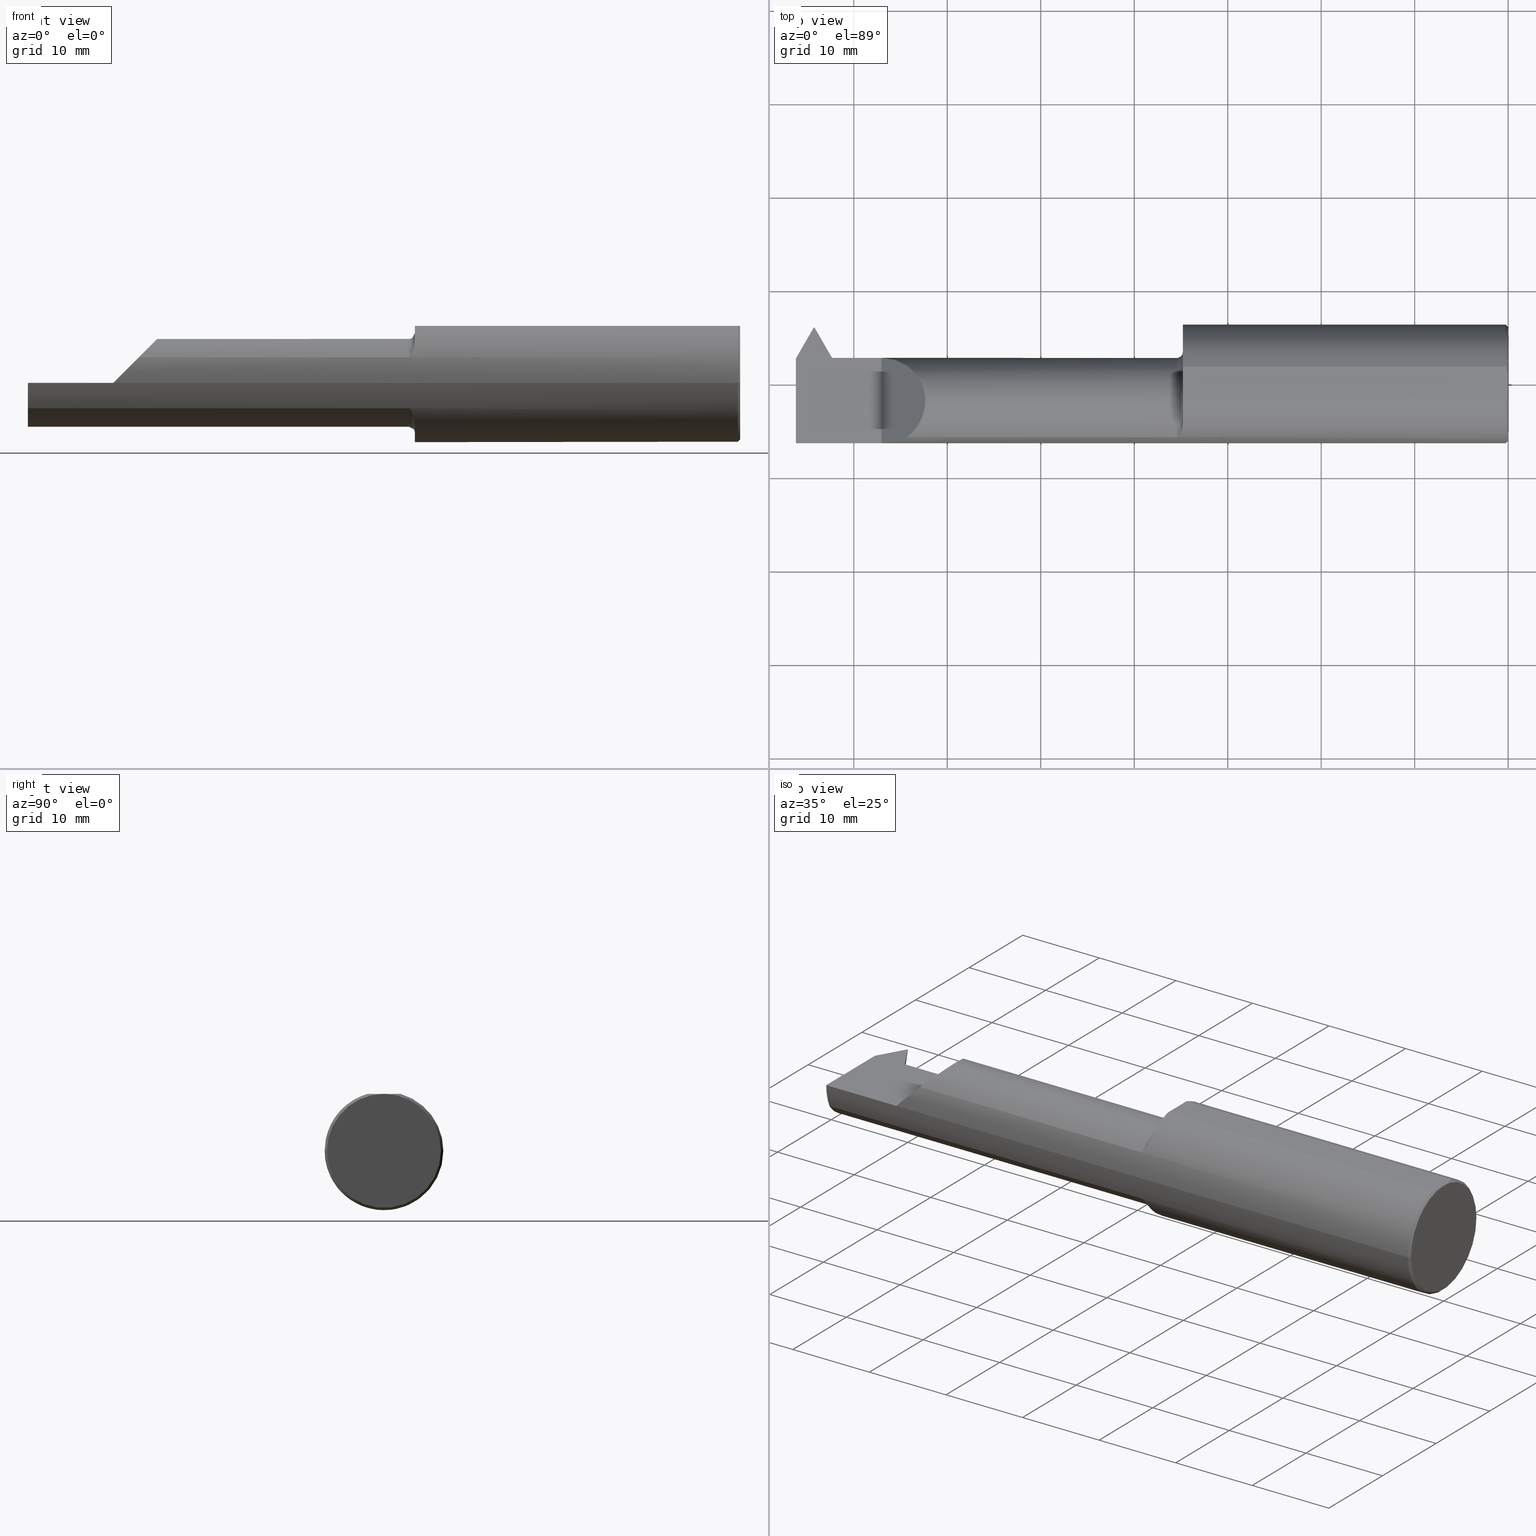
[diagram: canonical four-view strip — front | top / right | iso, engineering-drawing reading convention]
A machine part, canonical four-view strip (front | top / right | iso — engineering-drawing reading convention). The complete STEP part file that produces these views, byte-faithful:
ISO-10303-21;
HEADER;
FILE_DESCRIPTION (( 'STEP AP203' ),
    '1' );
FILE_NAME ('231969-LHTT4901500.STEP',
    '2025-01-28T21:48:16',
    ( '' ),
    ( '' ),
    'SwSTEP 2.0',
    'SolidWorks 2024',
    '' );
FILE_SCHEMA (( 'CONFIG_CONTROL_DESIGN' ));
ENDSEC;

DATA;
#1 = MECHANICAL_CONTEXT ( 'NONE', #387, 'mechanical' ) ;
#2 = CIRCLE ( 'NONE', #408, 0.2498500000000000443 ) ;
#3 = CIRCLE ( 'NONE', #499, 0.2498499999999999888 ) ;
#4 = LINE ( 'NONE', #75, #157 ) ;
#5 = CARTESIAN_POINT ( 'NONE',  ( 0.000000000000000000, 4.286263797015730678E-16, 0.000000000000000000 ) ) ;
#6 = EDGE_CURVE ( 'NONE', #542, #715, #551, .T. ) ;
#7 = ORIENTED_EDGE ( 'NONE', *, *, #148, .T. ) ;
#8 = APPROVAL_DATE_TIME ( #547, #130 ) ;
#9 = DIRECTION ( 'NONE',  ( -0.000000000000000000, 1.000000000000000000, -0.000000000000000000 ) ) ;
#10 = FACE_OUTER_BOUND ( 'NONE', #766, .T. ) ;
#11 = EDGE_CURVE ( 'NONE', #273, #633, #170, .T. ) ;
#12 = VERTEX_POINT ( 'NONE', #44 ) ;
#13 = AXIS2_PLACEMENT_3D ( 'NONE', #346, #571, #582 ) ;
#14 = DIRECTION ( 'NONE',  ( 0.000000000000000000, 1.000000000000000000, 0.000000000000000000 ) ) ;
#15 = FACE_OUTER_BOUND ( 'NONE', #64, .T. ) ;
#16 = VERTEX_POINT ( 'NONE', #410 ) ;
#17 = VECTOR ( 'NONE', #572, 39.37007874015748143 ) ;
#18 = DIRECTION ( 'NONE',  ( 0.000000000000000000, -0.3090169943749416781, -0.9510565162951555296 ) ) ;
#19 = VECTOR ( 'NONE', #492, 39.37007874015748143 ) ;
#20 = CARTESIAN_POINT ( 'NONE',  ( -0.009999999999999620304, 0.06997856814768398104, 0.2398500000000000076 ) ) ;
#21 = VERTEX_POINT ( 'NONE', #646 ) ;
#22 = CARTESIAN_POINT ( 'NONE',  ( -2.840467636289440545, 0.1101500000000000812, -0.01619057209964420985 ) ) ;
#23 = VERTEX_POINT ( 'NONE', #108 ) ;
#24 = CC_DESIGN_APPROVAL ( #617, ( #68 ) ) ;
#25 = DIRECTION ( 'NONE',  ( 0.4999999999999886202, 0.8660254037844451469, 1.197357567446783285E-16 ) ) ;
#26 = EDGE_LOOP ( 'NONE', ( #437, #624, #362 ) ) ;
#27 = CARTESIAN_POINT ( 'NONE',  ( -2.847599165543727828, 0.1101499999999999146, 0.000000000000000000 ) ) ;
#28 = EDGE_CURVE ( 'NONE', #226, #21, #290, .T. ) ;
#29 = EDGE_LOOP ( 'NONE', ( #242, #223, #510, #698 ) ) ;
#30 = ADVANCED_FACE ( 'NONE', ( #532 ), #710, .F. ) ;
#31 = CARTESIAN_POINT ( 'NONE',  ( -2.842599165543727935, 0.1101499999999998591, 0.000000000000000000 ) ) ;
#32 = LINE ( 'NONE', #156, #371 ) ;
#33 = EDGE_LOOP ( 'NONE', ( #158, #389, #599, #555, #448 ) ) ;
#34 = DIRECTION ( 'NONE',  ( 0.000000000000000000, -1.000000000000000000, 0.000000000000000000 ) ) ;
#35 = AXIS2_PLACEMENT_3D ( 'NONE', #284, #527, #757 ) ;
#36 = CARTESIAN_POINT ( 'NONE',  ( -1.387753075814180059, -0.2232556704115741253, 0.1121857874001151445 ) ) ;
#37 = ORIENTED_EDGE ( 'NONE', *, *, #563, .T. ) ;
#38 = DIRECTION ( 'NONE',  ( 0.2467836442342498937, 0.6229065763008626577, 0.7423511501571210536 ) ) ;
#39 = CARTESIAN_POINT ( 'NONE',  ( -1.392642439405626709, -0.2255733860777257294, 0.1074346955532789610 ) ) ;
#40 = ORIENTED_EDGE ( 'NONE', *, *, #231, .T. ) ;
#41 = AXIS2_PLACEMENT_3D ( 'NONE', #236, #412, #711 ) ;
#42 = LINE ( 'NONE', #224, #239 ) ;
#43 = FACE_OUTER_BOUND ( 'NONE', #58, .T. ) ;
#44 = CARTESIAN_POINT ( 'NONE',  ( -1.395000000000000240, -0.2258019038076137797, -0.1069510296203694671 ) ) ;
#45 = CARTESIAN_POINT ( 'NONE',  ( -2.842599165543727935, 0.1038462778634775124, -0.04788152334396636456 ) ) ;
#46 = DIRECTION ( 'NONE',  ( 1.000000000000000000, 1.224646799147351482E-16, -0.000000000000000000 ) ) ;
#47 = CARTESIAN_POINT ( 'NONE',  ( -2.912095980180414490, 0.2003055609682066474, -0.08186779325844162347 ) ) ;
#48 = ORIENTED_EDGE ( 'NONE', *, *, #111, .F. ) ;
#49 = EDGE_CURVE ( 'NONE', #640, #16, #673, .T. ) ;
#50 = ADVANCED_FACE ( 'NONE', ( #127 ), #429, .F. ) ;
#51 = PERSON_AND_ORGANIZATION ( #758, #676 ) ;
#52 = VECTOR ( 'NONE', #609, 39.37007874015748143 ) ;
#53 = CARTESIAN_POINT ( 'NONE',  ( -1.378062043806189907, -0.2099213682548084214, -0.1358028076871573564 ) ) ;
#54 = ORIENTED_EDGE ( 'NONE', *, *, #367, .F. ) ;
#55 = COORDINATED_UNIVERSAL_TIME_OFFSET ( 8, 0, .BEHIND. ) ;
#56 = APPLICATION_CONTEXT ( 'configuration controlled 3d designs of mechanical parts and assemblies' ) ;
#57 = CARTESIAN_POINT ( 'NONE',  ( -1.370000000000000329, 2.608497682183858774E-16, 0.000000000000000000 ) ) ;
#58 = EDGE_LOOP ( 'NONE', ( #212, #720, #479, #546, #372, #654, #537, #613 ) ) ;
#59 = LOCAL_TIME ( 13, 48, 16.00000000000000000, #55 ) ;
#60 = FACE_OUTER_BOUND ( 'NONE', #77, .T. ) ;
#61 = ADVANCED_FACE ( 'NONE', ( #488 ), #171, .T. ) ;
#62 = CARTESIAN_POINT ( 'NONE',  ( -2.842599165543729267, 0.08579428794633160715, -0.1849999999999999978 ) ) ;
#63 = CARTESIAN_POINT ( 'NONE',  ( -2.118799582771864198, -0.2258019038076136131, 0.1069510296203693839 ) ) ;
#64 = EDGE_LOOP ( 'NONE', ( #539, #381, #323, #278, #104, #70, #298, #283, #550, #685 ) ) ;
#65 = LENGTH_MEASURE_WITH_UNIT ( LENGTH_MEASURE( 0.02539999999999999897 ), #480 );
#66 = CIRCLE ( 'NONE', #210, 0.2398500000000004240 ) ;
#67 = PLANE ( 'NONE',  #524 ) ;
#68 = PRODUCT_DEFINITION ( 'UNKNOWN', '', #465, #357 ) ;
#69 = DIRECTION ( 'NONE',  ( 1.000000000000000000, -9.422009876951564852E-18, 0.000000000000000000 ) ) ;
#70 = ORIENTED_EDGE ( 'NONE', *, *, #634, .F. ) ;
#71 = PLANE ( 'NONE',  #396 ) ;
#72 = LINE ( 'NONE', #611, #92 ) ;
#73 = ORIENTED_EDGE ( 'NONE', *, *, #449, .F. ) ;
#74 = CC_DESIGN_SECURITY_CLASSIFICATION ( #337, ( #465 ) ) ;
#75 = CARTESIAN_POINT ( 'NONE',  ( -2.800000000000000266, 0.2186548182260258100, -0.05999999999999999778 ) ) ;
#76 = CARTESIAN_POINT ( 'NONE',  ( -3.000000000000000444, 0.1101500000000000812, 0.000000000000000000 ) ) ;
#77 = EDGE_LOOP ( 'NONE', ( #133, #671, #399, #504, #262, #270, #678 ) ) ;
#78 = DATE_TIME_ROLE ( 'classification_date' ) ;
#79 = VECTOR ( 'NONE', #69, 39.37007874015748143 ) ;
#80 = AXIS2_PLACEMENT_3D ( 'NONE', #277, #520, #324 ) ;
#81 = DIRECTION ( 'NONE',  ( 1.224646799147374161E-16, -1.000000000000000000, 0.000000000000000000 ) ) ;
#82 = ORIENTED_EDGE ( 'NONE', *, *, #162, .T. ) ;
#83 = CARTESIAN_POINT ( 'NONE',  ( 4.467205361589754149E-17, -0.2398499999999999799, 0.000000000000000000 ) ) ;
#84 = ORIENTED_EDGE ( 'NONE', *, *, #427, .T. ) ;
#85 = SHAPE_DEFINITION_REPRESENTATION ( #432, #596 ) ;
#86 = EDGE_CURVE ( 'NONE', #16, #150, #72, .T. ) ;
#87 = EDGE_CURVE ( 'NONE', #215, #477, #661, .T. ) ;
#88 = CARTESIAN_POINT ( 'NONE',  ( -1.370000000000000329, 0.2498500000000004329, 0.000000000000000000 ) ) ;
#89 = EDGE_LOOP ( 'NONE', ( #457, #562, #115, #658, #752 ) ) ;
#90 = DIRECTION ( 'NONE',  ( 1.000000000000000000, -9.422009876951564852E-18, 0.000000000000000000 ) ) ;
#91 = CARTESIAN_POINT ( 'NONE',  ( -1.390717781145548226, -0.2249352693140825865, 0.1087643826525832302 ) ) ;
#92 = VECTOR ( 'NONE', #620, 39.37007874015748143 ) ;
#93 = ORIENTED_EDGE ( 'NONE', *, *, #147, .F. ) ;
#94 = FACE_OUTER_BOUND ( 'NONE', #768, .T. ) ;
#95 = LINE ( 'NONE', #445, #17 ) ;
#96 = ORIENTED_EDGE ( 'NONE', *, *, #612, .F. ) ;
#97 = PLANE ( 'NONE',  #217 ) ;
#98 = CIRCLE ( 'NONE', #404, 0.1850000000000004141 ) ;
#99 = CARTESIAN_POINT ( 'NONE',  ( -1.371956565677432849, -0.1873305359565244632, 0.1655982590109640606 ) ) ;
#100 = VERTEX_POINT ( 'NONE', #20 ) ;
#101 = DIRECTION ( 'NONE',  ( -0.7071067811865514585, 0.000000000000000000, -0.7071067811865435759 ) ) ;
#102 = ADVANCED_FACE ( 'NONE', ( #553 ), #280, .T. ) ;
#103 = CARTESIAN_POINT ( 'NONE',  ( -1.373067695838076308, -0.1933460832554975972, -0.1585269497938200933 ) ) ;
#104 = ORIENTED_EDGE ( 'NONE', *, *, #743, .T. ) ;
#105 = CONICAL_SURFACE ( 'NONE', #342, 0.2398500000000004240, 0.7853981633974466137 ) ;
#106 = PLANE ( 'NONE',  #13 ) ;
#107 = CARTESIAN_POINT ( 'NONE',  ( -2.088003025044360861, -1.205509108578122657, 0.000000000000000000 ) ) ;
#108 = CARTESIAN_POINT ( 'NONE',  ( -3.000000000000000444, -0.07485000000000015252, -0.1850000000000000810 ) ) ;
#109 = DIRECTION ( 'NONE',  ( 0.000000000000000000, -1.000000000000000000, -1.406552993276529236E-16 ) ) ;
#110 =( BOUNDED_CURVE ( )  B_SPLINE_CURVE ( 3, ( #318, #22, #365, #191 ),
 .UNSPECIFIED., .F., .T. ) 
 B_SPLINE_CURVE_WITH_KNOTS ( ( 4, 4 ),
 ( 1.570796326794896780, 1.832595714594120739 ),
 .UNSPECIFIED. ) 
 CURVE ( )  GEOMETRIC_REPRESENTATION_ITEM ( )  RATIONAL_B_SPLINE_CURVE ( ( 1.000000000000000000, 0.9942965742492037018, 0.9942965742492037018, 1.000000000000000000 ) ) 
 REPRESENTATION_ITEM ( '' )  );
#111 = EDGE_CURVE ( 'NONE', #694, #514, #719, .T. ) ;
#112 = CARTESIAN_POINT ( 'NONE',  ( -0.009999999999999620304, 4.274017329024257420E-16, 0.000000000000000000 ) ) ;
#113 = EDGE_CURVE ( 'NONE', #215, #237, #110, .T. ) ;
#114 = APPROVAL_PERSON_ORGANIZATION ( #51, #130, #420 ) ;
#115 = ORIENTED_EDGE ( 'NONE', *, *, #482, .F. ) ;
#116 = PERSON_AND_ORGANIZATION_ROLE ( 'creator' ) ;
#117 = DIRECTION ( 'NONE',  ( 0.5000000000000024425, -0.8660254037844371533, 0.000000000000000000 ) ) ;
#118 = ORIENTED_EDGE ( 'NONE', *, *, #341, .T. ) ;
#119 = CC_DESIGN_PERSON_AND_ORGANIZATION_ASSIGNMENT ( #366, #116, ( #68 ) ) ;
#120 = AXIS2_PLACEMENT_3D ( 'NONE', #214, #508, #397 ) ;
#121 = AXIS2_PLACEMENT_3D ( 'NONE', #723, #548, #14 ) ;
#122 = CARTESIAN_POINT ( 'NONE',  ( -3.000000000000000444, 0.2498500000000000720, 0.000000000000000000 ) ) ;
#123 = ORIENTED_EDGE ( 'NONE', *, *, #714, .F. ) ;
#124 =( BOUNDED_CURVE ( )  B_SPLINE_CURVE ( 3, ( #470, #475, #528, #289 ),
 .UNSPECIFIED., .F., .F. ) 
 B_SPLINE_CURVE_WITH_KNOTS ( ( 4, 4 ),
 ( 4.712388980384689674, 5.154735109466821896 ),
 .UNSPECIFIED. ) 
 CURVE ( )  GEOMETRIC_REPRESENTATION_ITEM ( )  RATIONAL_B_SPLINE_CURVE ( ( 1.000000000000000000, 0.9837605203333756876, 0.9837605203333756876, 1.000000000000000000 ) ) 
 REPRESENTATION_ITEM ( '' )  );
#125 = DATE_TIME_ROLE ( 'creation_date' ) ;
#126 = LINE ( 'NONE', #62, #184 ) ;
#127 = FACE_OUTER_BOUND ( 'NONE', #495, .T. ) ;
#128 = CC_DESIGN_APPROVAL ( #130, ( #465 ) ) ;
#129 = APPLICATION_PROTOCOL_DEFINITION ( 'international standard', 'config_control_design', 1994, #56 ) ;
#130 = APPROVAL ( #307, 'UNSPECIFIED' ) ;
#131 = CARTESIAN_POINT ( 'NONE',  ( -2.856177983137416998, 0.09529105205886381769, -0.1128649149346503816 ) ) ;
#132 = CARTESIAN_POINT ( 'NONE',  ( -2.921500000000000874, 0.2381500000000000283, 0.000000000000000000 ) ) ;
#133 = ORIENTED_EDGE ( 'NONE', *, *, #702, .T. ) ;
#134 = LINE ( 'NONE', #201, #52 ) ;
#135 = DIRECTION ( 'NONE',  ( -1.000000000000000000, -1.224646799147374408E-16, 0.000000000000000000 ) ) ;
#136 = ORIENTED_EDGE ( 'NONE', *, *, #450, .T. ) ;
#137 = FACE_OUTER_BOUND ( 'NONE', #319, .T. ) ;
#138 = CARTESIAN_POINT ( 'NONE',  ( -1.128423961883223559E-15, 0.1101500000000290302, 0.000000000000000000 ) ) ;
#139 = ORIENTED_EDGE ( 'NONE', *, *, #727, .F. ) ;
#140 = APPROVAL_ROLE ( '' ) ;
#141 =( GEOMETRIC_REPRESENTATION_CONTEXT ( 3 ) GLOBAL_UNCERTAINTY_ASSIGNED_CONTEXT ( ( #476 ) ) GLOBAL_UNIT_ASSIGNED_CONTEXT ( ( #292, #235, #535 ) ) REPRESENTATION_CONTEXT ( 'NONE', 'WORKASPACE' ) );
#142 = CARTESIAN_POINT ( 'NONE',  ( 0.000000000000000000, 4.286263797015730678E-16, 0.000000000000000000 ) ) ;
#143 = EDGE_LOOP ( 'NONE', ( #756, #146, #626, #139 ) ) ;
#144 = AXIS2_PLACEMENT_3D ( 'NONE', #390, #557, #18 ) ;
#145 = CARTESIAN_POINT ( 'NONE',  ( -1.386631274780704359, -0.2222865629965309620, 0.1140986214717608638 ) ) ;
#146 = ORIENTED_EDGE ( 'NONE', *, *, #330, .F. ) ;
#147 = EDGE_CURVE ( 'NONE', #514, #21, #578, .T. ) ;
#148 = EDGE_CURVE ( 'NONE', #694, #715, #66, .T. ) ;
#149 = CARTESIAN_POINT ( 'NONE',  ( -1.383611583263218536, -0.2192375443050077477, 0.1199127921006386821 ) ) ;
#150 = VERTEX_POINT ( 'NONE', #132 ) ;
#151 = CARTESIAN_POINT ( 'NONE',  ( -2.924357658144500771, 0.2394501245018068880, 0.004001371775490055079 ) ) ;
#152 = CARTESIAN_POINT ( 'NONE',  ( -1.395000000000000240, -0.2258019038076137797, 0.1069510296203694810 ) ) ;
#153 = ORIENTED_EDGE ( 'NONE', *, *, #642, .F. ) ;
#154 = CARTESIAN_POINT ( 'NONE',  ( -2.640000000000000124, -0.2500000000000000000, 0.000000000000000000 ) ) ;
#155 = AXIS2_PLACEMENT_3D ( 'NONE', #195, #246, #378 ) ;
#156 = CARTESIAN_POINT ( 'NONE',  ( -2.842599165543727935, -0.07485000000000022191, -0.1850000000000000533 ) ) ;
#157 = VECTOR ( 'NONE', #438, 39.37007874015748143 ) ;
#158 = ORIENTED_EDGE ( 'NONE', *, *, #368, .F. ) ;
#159 = DIRECTION ( 'NONE',  ( 0.000000000000000000, -1.000000000000000000, 0.000000000000000000 ) ) ;
#160 = LINE ( 'NONE', #447, #356 ) ;
#161 = EDGE_LOOP ( 'NONE', ( #176, #637, #379, #608 ) ) ;
#162 = EDGE_CURVE ( 'NONE', #266, #215, #426, .T. ) ;
#163 = PLANE ( 'NONE',  #734 ) ;
#164 = AXIS2_PLACEMENT_3D ( 'NONE', #543, #604, #491 ) ;
#165 = CARTESIAN_POINT ( 'NONE',  ( 5.733229207650684486E-16, 0.01185524990370578555, 0.2398500000000000631 ) ) ;
#166 = VERTEX_POINT ( 'NONE', #603 ) ;
#167 = B_SPLINE_CURVE_WITH_KNOTS ( 'NONE', 3,
 ( #517, #269, #575, #99, #456, #632, #401, #628, #149, #145, #36, #738, #91, #39, #452, #393 ),
 .UNSPECIFIED., .F., .F.,
 ( 4, 2, 2, 2, 2, 2, 2, 4 ),
 ( 0.0007713084167964284884, 0.001497239385829862452, 0.002223170354863296307, 0.002949101323896731464, 0.003312066808413445789, 0.003493549550671799266, 0.003584290921800975787, 0.003675032292930152308 ),
 .UNSPECIFIED. ) ;
#168 = CARTESIAN_POINT ( 'NONE',  ( -6.745148754278355005E-33, 3.731796911060679279E-16, 0.2398500000000000631 ) ) ;
#169 = CARTESIAN_POINT ( 'NONE',  ( -0.004312611582161834413, 0.04712320684214399424, 0.2398500000000000631 ) ) ;
#170 = LINE ( 'NONE', #345, #592 ) ;
#171 = CONICAL_SURFACE ( 'NONE', #257, 0.2398500000000004240, 0.7853981633974466137 ) ;
#172 = CARTESIAN_POINT ( 'NONE',  ( -1.370000000000000329, 0.2498500000000002663, 0.000000000000000000 ) ) ;
#173 = EDGE_CURVE ( 'NONE', #302, #240, #260, .T. ) ;
#174 = ADVANCED_FACE ( 'NONE', ( #498 ), #105, .T. ) ;
#175 = LINE ( 'NONE', #47, #621 ) ;
#176 = ORIENTED_EDGE ( 'NONE', *, *, #11, .F. ) ;
#177 = CARTESIAN_POINT ( 'NONE',  ( -2.842599165543727935, -0.07485000000000022191, -0.1850000000000000533 ) ) ;
#178 = DIRECTION ( 'NONE',  ( 1.224646799147351482E-16, -1.000000000000000000, 0.000000000000000000 ) ) ;
#179 = ORIENTED_EDGE ( 'NONE', *, *, #265, .F. ) ;
#180 = PERSON_AND_ORGANIZATION ( #758, #676 ) ;
#181 = CARTESIAN_POINT ( 'NONE',  ( -1.393766764954792015, -0.2258019038076130580, -0.1069510296203704525 ) ) ;
#182 = EDGE_LOOP ( 'NONE', ( #73, #674, #179, #136 ) ) ;
#183 = APPLICATION_PROTOCOL_DEFINITION ( 'international standard', 'config_control_design', 1994, #387 ) ;
#184 = VECTOR ( 'NONE', #303, 39.37007874015748143 ) ;
#185 = FACE_OUTER_BOUND ( 'NONE', #89, .T. ) ;
#186 = CYLINDRICAL_SURFACE ( 'NONE', #268, 0.1850000000000002753 ) ;
#187 = CC_DESIGN_PERSON_AND_ORGANIZATION_ASSIGNMENT ( #763, #243, ( #496 ) ) ;
#188 = APPROVAL_ROLE ( '' ) ;
#189 = MANIFOLD_SOLID_BREP ( 'Angles', #680 ) ;
#190 = CARTESIAN_POINT ( 'NONE',  ( -1.370000000000000329, -0.1598366399459756337, 0.1920345568659278801 ) ) ;
#191 = CARTESIAN_POINT ( 'NONE',  ( -2.836295443407202743, 0.1038462778634750006, -0.04788152334397974969 ) ) ;
#192 = ORIENTED_EDGE ( 'NONE', *, *, #251, .F. ) ;
#193 = PERSON_AND_ORGANIZATION ( #758, #676 ) ;
#194 = DIRECTION ( 'NONE',  ( 0.03381283892699543658, 0.3088402930417901704, 0.9505126855111183382 ) ) ;
#195 = CARTESIAN_POINT ( 'NONE',  ( -0.009999999999999620304, 4.274017329024257420E-16, 0.000000000000000000 ) ) ;
#196 = ORIENTED_EDGE ( 'NONE', *, *, #162, .F. ) ;
#197 = AXIS2_PLACEMENT_3D ( 'NONE', #566, #264, #747 ) ;
#198 = ADVANCED_FACE ( 'NONE', ( #15 ), #186, .T. ) ;
#199 = VECTOR ( 'NONE', #377, 39.37007874015748143 ) ;
#200 = ADVANCED_FACE ( 'NONE', ( #10 ), #250, .T. ) ;
#201 = CARTESIAN_POINT ( 'NONE',  ( 2.937315347754982348E-17, -0.2398499999999999799, 0.000000000000000000 ) ) ;
#202 = CARTESIAN_POINT ( 'NONE',  ( -2.842599165543727935, 2.678299741396727995E-17, 0.000000000000000000 ) ) ;
#203 =( BOUNDED_CURVE ( )  B_SPLINE_CURVE ( 3, ( #760, #704, #395, #340 ),
 .UNSPECIFIED., .F., .F. ) 
 B_SPLINE_CURVE_WITH_KNOTS ( ( 4, 4 ),
 ( 1.570796326794896558, 4.095973986638924202 ),
 .UNSPECIFIED. ) 
 CURVE ( )  GEOMETRIC_REPRESENTATION_ITEM ( )  RATIONAL_B_SPLINE_CURVE ( ( 1.000000000000000000, 0.5355673909124378795, 0.5355673909124378795, 1.000000000000000000 ) ) 
 REPRESENTATION_ITEM ( '' )  );
#204 = CARTESIAN_POINT ( 'NONE',  ( -2.088003025044360861, -1.205509108578122657, 0.000000000000000000 ) ) ;
#205 = CARTESIAN_POINT ( 'NONE',  ( 1.529890013834825727E-17, 4.286263797015730678E-16, 0.000000000000000000 ) ) ;
#206 = ORIENTED_EDGE ( 'NONE', *, *, #691, .T. ) ;
#207 = CARTESIAN_POINT ( 'NONE',  ( -2.842599165543727935, 0.1101499999999998453, 0.000000000000000000 ) ) ;
#208 = EDGE_CURVE ( 'NONE', #386, #561, #434, .T. ) ;
#209 = EDGE_LOOP ( 'NONE', ( #96, #40, #586 ) ) ;
#210 = AXIS2_PLACEMENT_3D ( 'NONE', #205, #439, #558 ) ;
#211 = LINE ( 'NONE', #684, #359 ) ;
#212 = ORIENTED_EDGE ( 'NONE', *, *, #28, .F. ) ;
#213 = APPROVAL ( #675, 'UNSPECIFIED' ) ;
#214 = CARTESIAN_POINT ( 'NONE',  ( -1.370000000000000329, -0.07485000000000020803, 0.000000000000000000 ) ) ;
#215 = VERTEX_POINT ( 'NONE', #207 ) ;
#216 = CARTESIAN_POINT ( 'NONE',  ( 1.529890013834831273E-17, 1.873574908490323227E-33, 0.000000000000000000 ) ) ;
#217 = AXIS2_PLACEMENT_3D ( 'NONE', #154, #333, #101 ) ;
#218 = DIRECTION ( 'NONE',  ( -1.224646799147351482E-16, 1.000000000000000000, 0.000000000000000000 ) ) ;
#219 = ORIENTED_EDGE ( 'NONE', *, *, #86, .F. ) ;
#220 = LINE ( 'NONE', #461, #630 ) ;
#221 = CARTESIAN_POINT ( 'NONE',  ( -2.926634395854517123, 0.2186548182260257822, -0.06000000000000002554 ) ) ;
#222 = VECTOR ( 'NONE', #361, 39.37007874015748143 ) ;
#223 = ORIENTED_EDGE ( 'NONE', *, *, #111, .T. ) ;
#224 = CARTESIAN_POINT ( 'NONE',  ( -2.794980834310221596, 0.06253166876649500494, -0.3616971353080062346 ) ) ;
#225 = DIRECTION ( 'NONE',  ( -1.000000000000000000, -1.224646799147374408E-16, 0.000000000000000000 ) ) ;
#226 = VERTEX_POINT ( 'NONE', #459 ) ;
#227 = DIRECTION ( 'NONE',  ( 1.000000000000000000, -9.422009876951564852E-18, 0.000000000000000000 ) ) ;
#228 = AXIS2_PLACEMENT_3D ( 'NONE', #177, #350, #109 ) ;
#229 = LINE ( 'NONE', #122, #753 ) ;
#230 = CARTESIAN_POINT ( 'NONE',  ( -0.006805225572346869367, -0.05857201308550646218, 0.2398500000000000631 ) ) ;
#231 = EDGE_CURVE ( 'NONE', #725, #444, #739, .T. ) ;
#232 = CARTESIAN_POINT ( 'NONE',  ( -0.009999999999999620304, 4.274017329024257420E-16, 0.000000000000000000 ) ) ;
#233 = CARTESIAN_POINT ( 'NONE',  ( -3.000000000000000444, 6.123233995736759873E-17, 0.000000000000000000 ) ) ;
#234 = CARTESIAN_POINT ( 'NONE',  ( -0.0008810604711147574731, -0.02359329477404692454, 0.2398500000000000631 ) ) ;
#235 =( NAMED_UNIT ( * ) PLANE_ANGLE_UNIT ( ) SI_UNIT ( $, .RADIAN. ) );
#236 = CARTESIAN_POINT ( 'NONE',  ( -1.395000000000000240, -0.07485000000000018028, 0.000000000000000000 ) ) ;
#237 = VERTEX_POINT ( 'NONE', #513 ) ;
#238 = CYLINDRICAL_SURFACE ( 'NONE', #730, 0.2498499999999999888 ) ;
#239 = VECTOR ( 'NONE', #574, 39.37007874015748854 ) ;
#240 = VERTEX_POINT ( 'NONE', #697 ) ;
#241 = CARTESIAN_POINT ( 'NONE',  ( -3.000000000000000444, -0.2498499999999999610, 0.000000000000000000 ) ) ;
#242 = ORIENTED_EDGE ( 'NONE', *, *, #148, .F. ) ;
#243 = PERSON_AND_ORGANIZATION_ROLE ( 'design_owner' ) ;
#244 = CIRCLE ( 'NONE', #485, 0.2498499999999999888 ) ;
#245 = FACE_OUTER_BOUND ( 'NONE', #182, .T. ) ;
#246 = DIRECTION ( 'NONE',  ( -1.000000000000000000, -1.224646799147374408E-16, 0.000000000000000000 ) ) ;
#247 = EDGE_LOOP ( 'NONE', ( #521, #742, #467, #406, #153 ) ) ;
#248 = SECURITY_CLASSIFICATION_LEVEL ( 'unclassified' ) ;
#249 = FACE_OUTER_BOUND ( 'NONE', #595, .T. ) ;
#250 = PLANE ( 'NONE',  #305 ) ;
#251 = EDGE_CURVE ( 'NONE', #576, #748, #2, .T. ) ;
#252 = ORIENTED_EDGE ( 'NONE', *, *, #173, .T. ) ;
#253 = EDGE_CURVE ( 'NONE', #335, #694, #512, .T. ) ;
#254 = LINE ( 'NONE', #552, #423 ) ;
#255 = DIRECTION ( 'NONE',  ( 9.422009876951564852E-18, 1.000000000000000000, 1.242426775361223693E-16 ) ) ;
#256 = EDGE_LOOP ( 'NONE', ( #48, #327, #712, #93 ) ) ;
#257 = AXIS2_PLACEMENT_3D ( 'NONE', #142, #135, #310 ) ;
#258 = VECTOR ( 'NONE', #771, 39.37007874015748854 ) ;
#259 = PLANE ( 'NONE',  #144 ) ;
#260 = LINE ( 'NONE', #63, #643 ) ;
#261 = DIRECTION ( 'NONE',  ( 1.000000000000000000, 1.024442997624081894E-14, 0.000000000000000000 ) ) ;
#262 = ORIENTED_EDGE ( 'NONE', *, *, #585, .T. ) ;
#263 = LOCAL_TIME ( 13, 48, 16.00000000000000000, #665 ) ;
#264 = DIRECTION ( 'NONE',  ( -1.000000000000000000, 9.422009876951564852E-18, -0.000000000000000000 ) ) ;
#265 = EDGE_CURVE ( 'NONE', #100, #561, #95, .T. ) ;
#266 = VERTEX_POINT ( 'NONE', #27 ) ;
#267 = DATE_AND_TIME ( #619, #263 ) ;
#268 = AXIS2_PLACEMENT_3D ( 'NONE', #545, #731, #549 ) ;
#269 = CARTESIAN_POINT ( 'NONE',  ( -1.369999999999983009, -0.1671615771988863020, 0.1859377721133057826 ) ) ;
#270 = ORIENTED_EDGE ( 'NONE', *, *, #274, .F. ) ;
#271 = DIRECTION ( 'NONE',  ( 1.000000000000000000, -9.422009876951564852E-18, 0.000000000000000000 ) ) ;
#272 = DIRECTION ( 'NONE',  ( -1.000000000000000000, 9.422009876951564852E-18, -0.000000000000000000 ) ) ;
#273 = VERTEX_POINT ( 'NONE', #679 ) ;
#274 = EDGE_CURVE ( 'NONE', #444, #166, #32, .T. ) ;
#275 = DIRECTION ( 'NONE',  ( 1.000000000000000000, 1.224646799147351482E-16, -0.000000000000000000 ) ) ;
#276 = EDGE_CURVE ( 'NONE', #490, #273, #160, .T. ) ;
#277 = CARTESIAN_POINT ( 'NONE',  ( 1.529890013834825727E-17, 4.286263797015730678E-16, 0.000000000000000000 ) ) ;
#278 = ORIENTED_EDGE ( 'NONE', *, *, #173, .F. ) ;
#279 = CARTESIAN_POINT ( 'NONE',  ( -1.407425333920101771E-17, 0.2398500000000008681, 2.998547687712296871E-17 ) ) ;
#280 = CONICAL_SURFACE ( 'NONE', #523, 0.2398500000000004240, 0.7853981633974466137 ) ;
#281 = CARTESIAN_POINT ( 'NONE',  ( -1.370000000000000329, 2.608497682183858774E-16, 0.000000000000000000 ) ) ;
#282 = VECTOR ( 'NONE', #194, 39.37007874015748854 ) ;
#283 = ORIENTED_EDGE ( 'NONE', *, *, #473, .F. ) ;
#284 = CARTESIAN_POINT ( 'NONE',  ( -3.000000000000000444, -0.07485000000000019416, 0.000000000000000000 ) ) ;
#285 = EDGE_CURVE ( 'NONE', #237, #725, #741, .T. ) ;
#286 = CARTESIAN_POINT ( 'NONE',  ( -1.370000000000000329, -0.1598366399465579735, -0.1920345568656701696 ) ) ;
#287 = ORIENTED_EDGE ( 'NONE', *, *, #612, .T. ) ;
#288 = FACE_OUTER_BOUND ( 'NONE', #26, .T. ) ;
#289 = CARTESIAN_POINT ( 'NONE',  ( -2.533048970379630394, -0.2258019038076140295, 0.1069510296203686622 ) ) ;
#290 = LINE ( 'NONE', #349, #483 ) ;
#291 = EDGE_CURVE ( 'NONE', #507, #312, #469, .T. ) ;
#292 =( CONVERSION_BASED_UNIT ( 'INCH', #65 ) LENGTH_UNIT ( ) NAMED_UNIT ( #451 ) );
#293 = DIRECTION ( 'NONE',  ( 0.2467836442342614400, -0.6229065763008608814, -0.7423511501571188331 ) ) ;
#294 = AXIS2_PLACEMENT_3D ( 'NONE', #413, #380, #503 ) ;
#295 = EDGE_LOOP ( 'NONE', ( #353, #463, #759, #650 ) ) ;
#296 = VECTOR ( 'NONE', #227, 39.37007874015748143 ) ;
#297 = CARTESIAN_POINT ( 'NONE',  ( -1.370000000000000773, -0.1671052035161187110, -0.1859846937724914662 ) ) ;
#298 = ORIENTED_EDGE ( 'NONE', *, *, #714, .T. ) ;
#299 = COORDINATED_UNIVERSAL_TIME_OFFSET ( 8, 0, .BEHIND. ) ;
#300 = DIRECTION ( 'NONE',  ( 0.000000000000000000, 1.000000000000000000, 1.242426775361223693E-16 ) ) ;
#301 = AXIS2_PLACEMENT_3D ( 'NONE', #407, #90, #159 ) ;
#302 = VERTEX_POINT ( 'NONE', #152 ) ;
#303 = DIRECTION ( 'NONE',  ( 1.000000000000000000, 1.024442997624081894E-14, 1.414236204413229296E-30 ) ) ;
#304 = DIRECTION ( 'NONE',  ( 1.224646799147374161E-16, -1.000000000000000000, 0.000000000000000000 ) ) ;
#305 = AXIS2_PLACEMENT_3D ( 'NONE', #442, #494, #724 ) ;
#306 = ORIENTED_EDGE ( 'NONE', *, *, #367, .T. ) ;
#307 = APPROVAL_STATUS ( 'not_yet_approved' ) ;
#308 = CARTESIAN_POINT ( 'NONE',  ( -0.009999999999999649794, 0.2498500000000004329, 0.000000000000000000 ) ) ;
#309 = EDGE_CURVE ( 'NONE', #507, #302, #167, .T. ) ;
#310 = DIRECTION ( 'NONE',  ( 1.224646799147374161E-16, -1.000000000000000000, 0.000000000000000000 ) ) ;
#311 = EDGE_CURVE ( 'NONE', #740, #561, #669, .T. ) ;
#312 = VERTEX_POINT ( 'NONE', #688 ) ;
#313 = DIRECTION ( 'NONE',  ( -0.8586164364012595085, -0.4957224306869077446, 0.1305261922200518510 ) ) ;
#314 = DIRECTION ( 'NONE',  ( 0.4999999999999885647, 0.8660254037844451469, 0.000000000000000000 ) ) ;
#315 = CC_DESIGN_DATE_AND_TIME_ASSIGNMENT ( #267, #78, ( #337 ) ) ;
#316 = ORIENTED_EDGE ( 'NONE', *, *, #28, .T. ) ;
#317 = LINE ( 'NONE', #729, #199 ) ;
#318 = CARTESIAN_POINT ( 'NONE',  ( -2.842599165543727935, 0.1101499999999998453, 0.000000000000000000 ) ) ;
#319 = EDGE_LOOP ( 'NONE', ( #339, #316, #565, #54, #737, #430, #252 ) ) ;
#320 = PERSON_AND_ORGANIZATION ( #758, #676 ) ;
#321 = TOROIDAL_SURFACE ( 'NONE', #41, 0.2100000000000003531, 0.02499999999999992853 ) ;
#322 = CARTESIAN_POINT ( 'NONE',  ( -2.937315347754982348E-17, 0.2398500000000008681, 2.937315347754931811E-17 ) ) ;
#323 = ORIENTED_EDGE ( 'NONE', *, *, #692, .T. ) ;
#324 = DIRECTION ( 'NONE',  ( -1.224646799147351482E-16, 1.000000000000000000, 0.000000000000000000 ) ) ;
#325 = EDGE_LOOP ( 'NONE', ( #689, #460, #7 ) ) ;
#326 = DIRECTION ( 'NONE',  ( -9.422009876951564852E-18, -1.000000000000000000, 0.000000000000000000 ) ) ;
#327 = ORIENTED_EDGE ( 'NONE', *, *, #253, .F. ) ;
#328 = CARTESIAN_POINT ( 'NONE',  ( -3.000000000000000444, -0.07485000000000022191, -0.1850000000000000533 ) ) ;
#329 = DIRECTION ( 'NONE',  ( 1.000000000000000000, -9.422009876951564852E-18, 0.000000000000000000 ) ) ;
#330 = EDGE_CURVE ( 'NONE', #715, #335, #344, .T. ) ;
#331 = VERTEX_POINT ( 'NONE', #221 ) ;
#332 = ADVANCED_FACE ( 'NONE', ( #735 ), #385, .T. ) ;
#333 = DIRECTION ( 'NONE',  ( 0.7071067811865435759, 0.000000000000000000, -0.7071067811865514585 ) ) ;
#334 = DIRECTION ( 'NONE',  ( 0.000000000000000000, 1.000000000000000000, 1.406552993276529236E-16 ) ) ;
#335 = VERTEX_POINT ( 'NONE', #83 ) ;
#336 = CARTESIAN_POINT ( 'NONE',  ( -2.877811205633737490, 0.1137673643288670128, -0.1849999999999999978 ) ) ;
#337 = SECURITY_CLASSIFICATION ( '', '', #248 ) ;
#338 = CARTESIAN_POINT ( 'NONE',  ( 1.529890013834825727E-17, 4.286263797015730678E-16, 0.000000000000000000 ) ) ;
#339 = ORIENTED_EDGE ( 'NONE', *, *, #398, .F. ) ;
#340 = CARTESIAN_POINT ( 'NONE',  ( -2.533048970379630394, -0.2258019038076140295, 0.1069510296203686622 ) ) ;
#341 = EDGE_CURVE ( 'NONE', #576, #226, #211, .T. ) ;
#342 = AXIS2_PLACEMENT_3D ( 'NONE', #375, #370, #304 ) ;
#343 = FACE_OUTER_BOUND ( 'NONE', #295, .T. ) ;
#344 = CIRCLE ( 'NONE', #80, 0.2398500000000004240 ) ;
#345 = CARTESIAN_POINT ( 'NONE',  ( -2.842599165543727935, 0.1137673643288670405, -0.1849999999999999978 ) ) ;
#346 = CARTESIAN_POINT ( 'NONE',  ( -3.000000000000000444, -0.2500000000000000000, 0.000000000000000000 ) ) ;
#347 = EDGE_CURVE ( 'NONE', #150, #266, #538, .T. ) ;
#348 = CARTESIAN_POINT ( 'NONE',  ( -2.919365604145484738, 0.2186548182260258100, -0.06000000000000001166 ) ) ;
#349 = CARTESIAN_POINT ( 'NONE',  ( -3.000000000000000444, -0.2498499999999999333, 3.059780027669661931E-17 ) ) ;
#350 = DIRECTION ( 'NONE',  ( 2.185080860334177215E-33, -1.406552993276529236E-16, 1.000000000000000000 ) ) ;
#351 = CIRCLE ( 'NONE', #301, 0.2498499999999999888 ) ;
#352 = CARTESIAN_POINT ( 'NONE',  ( -2.842599165543727935, -0.07485000000000015252, -0.1850000000000000810 ) ) ;
#353 = ORIENTED_EDGE ( 'NONE', *, *, #291, .T. ) ;
#354 = COORDINATED_UNIVERSAL_TIME_OFFSET ( 8, 0, .BEHIND. ) ;
#355 = DIRECTION ( 'NONE',  ( 0.000000000000000000, 1.000000000000000000, 0.000000000000000000 ) ) ;
#356 = VECTOR ( 'NONE', #25, 39.37007874015748854 ) ;
#357 = DESIGN_CONTEXT ( 'detailed design', #56, 'design' ) ;
#358 = VERTEX_POINT ( 'NONE', #348 ) ;
#359 = VECTOR ( 'NONE', #625, 39.37007874015748143 ) ;
#360 = DIRECTION ( 'NONE',  ( 9.422009876951564852E-18, 1.000000000000000000, 0.000000000000000000 ) ) ;
#361 = DIRECTION ( 'NONE',  ( 1.000000000000000000, 1.224646799147351482E-16, -0.000000000000000000 ) ) ;
#362 = ORIENTED_EDGE ( 'NONE', *, *, #398, .T. ) ;
#363 = CALENDAR_DATE ( 2025, 28, 1 ) ;
#364 = FACE_OUTER_BOUND ( 'NONE', #33, .T. ) ;
#365 = CARTESIAN_POINT ( 'NONE',  ( -2.838354342563409904, 0.1080367062739687467, -0.03224263161053853022 ) ) ;
#366 = PERSON_AND_ORGANIZATION ( #758, #676 ) ;
#367 = EDGE_CURVE ( 'NONE', #386, #542, #761, .T. ) ;
#368 = EDGE_CURVE ( 'NONE', #358, #633, #175, .T. ) ;
#369 = LINE ( 'NONE', #131, #258 ) ;
#370 = DIRECTION ( 'NONE',  ( -1.000000000000000000, -1.224646799147374408E-16, 0.000000000000000000 ) ) ;
#371 = VECTOR ( 'NONE', #334, 39.37007874015748143 ) ;
#372 = ORIENTED_EDGE ( 'NONE', *, *, #392, .T. ) ;
#373 = B_SPLINE_CURVE_WITH_KNOTS ( 'NONE', 3,
 ( #645, #181, #713, #594, #462, #421, #598, #653, #478, #53, #580, #103, #536, #765, #297, #286 ),
 .UNSPECIFIED., .F., .F.,
 ( 4, 2, 2, 2, 2, 2, 2, 4 ),
 ( 1.967731640856366958E-07, 9.266832530624347813E-05, 0.0001851398774484013356, 0.0003700829817327161019, 0.0007399691903013533864, 0.001479741607438627739, 0.002219514024575901766, 0.002959286441713174926 ),
 .UNSPECIFIED. ) ;
#374 = LINE ( 'NONE', #151, #282 ) ;
#375 = CARTESIAN_POINT ( 'NONE',  ( 0.000000000000000000, 4.286263797015730678E-16, 0.000000000000000000 ) ) ;
#376 = ORIENTED_EDGE ( 'NONE', *, *, #585, .F. ) ;
#377 = DIRECTION ( 'NONE',  ( 0.5000000000000025535, -0.8660254037844371533, -1.197357567446772438E-16 ) ) ;
#378 = DIRECTION ( 'NONE',  ( -1.195901037850825602E-16, 1.000000000000000000, 0.000000000000000000 ) ) ;
#379 = ORIENTED_EDGE ( 'NONE', *, *, #533, .F. ) ;
#380 = DIRECTION ( 'NONE',  ( 1.015678745764778597E-14, -0.9914448613738103822, 0.1305261922200518787 ) ) ;
#381 = ORIENTED_EDGE ( 'NONE', *, *, #87, .T. ) ;
#382 = COORDINATED_UNIVERSAL_TIME_OFFSET ( 8, 0, .BEHIND. ) ;
#383 = VECTOR ( 'NONE', #663, 39.37007874015748854 ) ;
#384 = VECTOR ( 'NONE', #178, 39.37007874015748143 ) ;
#385 = PLANE ( 'NONE',  #681 ) ;
#386 = VERTEX_POINT ( 'NONE', #584 ) ;
#387 = APPLICATION_CONTEXT ( 'configuration controlled 3d designs of mechanical parts and assemblies' ) ;
#388 = DIRECTION ( 'NONE',  ( 0.000000000000000000, -1.000000000000000000, 0.000000000000000000 ) ) ;
#389 = ORIENTED_EDGE ( 'NONE', *, *, #691, .F. ) ;
#390 = CARTESIAN_POINT ( 'NONE',  ( -2.800000000000000266, 0.2381499999999997785, -5.855997501956570670E-19 ) ) ;
#391 = ADVANCED_FACE ( 'NONE', ( #43 ), #238, .T. ) ;
#392 = EDGE_CURVE ( 'NONE', #12, #312, #373, .T. ) ;
#393 = CARTESIAN_POINT ( 'NONE',  ( -1.395000000000000240, -0.2258019038076137797, 0.1069510296203694810 ) ) ;
#394 = ORIENTED_EDGE ( 'NONE', *, *, #265, .T. ) ;
#395 = CARTESIAN_POINT ( 'NONE',  ( -2.354000382304568539, -0.09894407450122372216, 0.2859996176954284763 ) ) ;
#396 = AXIS2_PLACEMENT_3D ( 'NONE', #204, #313, #487 ) ;
#397 = DIRECTION ( 'NONE',  ( 0.000000000000000000, -1.000000000000000000, 0.000000000000000000 ) ) ;
#398 = EDGE_CURVE ( 'NONE', #226, #240, #124, .T. ) ;
#399 = ORIENTED_EDGE ( 'NONE', *, *, #11, .T. ) ;
#400 = DIRECTION ( 'NONE',  ( -1.224646799147351482E-16, 1.000000000000000000, 0.000000000000000000 ) ) ;
#401 = CARTESIAN_POINT ( 'NONE',  ( -1.378055368518436907, -0.2099128102803901330, 0.1358187170865862992 ) ) ;
#402 = ORIENTED_EDGE ( 'NONE', *, *, #347, .F. ) ;
#403 = DIRECTION ( 'NONE',  ( 0.03381283892700073790, -0.3088402930417901704, -0.9505126855111181161 ) ) ;
#404 = AXIS2_PLACEMENT_3D ( 'NONE', #411, #749, #34 ) ;
#405 = CARTESIAN_POINT ( 'NONE',  ( -0.006819279375477977842, 0.05862219048703239122, 0.2398500000000000631 ) ) ;
#406 = ORIENTED_EDGE ( 'NONE', *, *, #311, .F. ) ;
#407 = CARTESIAN_POINT ( 'NONE',  ( -1.370000000000000329, 2.608497682183858774E-16, 0.000000000000000000 ) ) ;
#408 = AXIS2_PLACEMENT_3D ( 'NONE', #564, #569, #693 ) ;
#409 = LINE ( 'NONE', #352, #19 ) ;
#410 = CARTESIAN_POINT ( 'NONE',  ( -2.924500000000000544, 0.2381500000000000283, 0.000000000000000000 ) ) ;
#411 = CARTESIAN_POINT ( 'NONE',  ( -1.395000000000000240, -0.07485000000000020803, 0.000000000000000000 ) ) ;
#412 = DIRECTION ( 'NONE',  ( -1.000000000000000000, 9.422009876951564852E-18, -0.000000000000000000 ) ) ;
#413 = CARTESIAN_POINT ( 'NONE',  ( -1.128423961883223559E-15, 0.1101500000000290302, 0.000000000000000000 ) ) ;
#414 = DATE_AND_TIME ( #472, #59 ) ;
#415 = LOCAL_TIME ( 13, 48, 16.00000000000000000, #299 ) ;
#416 = ADVANCED_FACE ( 'NONE', ( #343 ), #321, .F. ) ;
#417 = DIRECTION ( 'NONE',  ( 0.000000000000000000, -1.000000000000000000, 0.000000000000000000 ) ) ;
#418 = EDGE_CURVE ( 'NONE', #386, #507, #244, .T. ) ;
#419 = EDGE_LOOP ( 'NONE', ( #422, #287, #376, #37, #82, #570 ) ) ;
#420 = APPROVAL_ROLE ( '' ) ;
#421 = CARTESIAN_POINT ( 'NONE',  ( -1.387712610578066830, -0.2232268177254514152, -0.1122435923601519669 ) ) ;
#422 = ORIENTED_EDGE ( 'NONE', *, *, #285, .T. ) ;
#423 = VECTOR ( 'NONE', #9, 39.37007874015748143 ) ;
#424 = APPROVAL_STATUS ( 'not_yet_approved' ) ;
#425 = DIRECTION ( 'NONE',  ( 1.190050470068252043E-17, -0.7660444431189817882, 0.6427876096865350330 ) ) ;
#426 = LINE ( 'NONE', #138, #606 ) ;
#427 = EDGE_CURVE ( 'NONE', #640, #576, #767, .T. ) ;
#428 = CARTESIAN_POINT ( 'NONE',  ( -2.296496974955664072, 1.325883146683773717, 0.000000000000000000 ) ) ;
#429 = PLANE ( 'NONE',  #436 ) ;
#430 = ORIENTED_EDGE ( 'NONE', *, *, #309, .T. ) ;
#431 = DATE_AND_TIME ( #726, #493 ) ;
#432 = PRODUCT_DEFINITION_SHAPE ( 'NONE', 'NONE',  #68 ) ;
#433 = PLANE ( 'NONE',  #656 ) ;
#434 = LINE ( 'NONE', #670, #559 ) ;
#435 = AXIS2_PLACEMENT_3D ( 'NONE', #281, #329, #388 ) ;
#436 = AXIS2_PLACEMENT_3D ( 'NONE', #202, #616, #505 ) ;
#437 = ORIENTED_EDGE ( 'NONE', *, *, #692, .F. ) ;
#438 = DIRECTION ( 'NONE',  ( -1.000000000000000000, -1.553500558300393113E-17, -0.000000000000000000 ) ) ;
#439 = DIRECTION ( 'NONE',  ( 1.000000000000000000, 1.224646799147351482E-16, -0.000000000000000000 ) ) ;
#440 = VERTEX_POINT ( 'NONE', #526 ) ;
#441 = PLANE ( 'NONE',  #593 ) ;
#442 = CARTESIAN_POINT ( 'NONE',  ( -3.000000000000000444, 6.123233995736759873E-17, 0.000000000000000000 ) ) ;
#443 = VECTOR ( 'NONE', #577, 39.37007874015748143 ) ;
#444 = VERTEX_POINT ( 'NONE', #657 ) ;
#445 = CARTESIAN_POINT ( 'NONE',  ( -3.000000000000000444, 0.06997856814768362022, 0.2398500000000000076 ) ) ;
#446 = ORIENTED_EDGE ( 'NONE', *, *, #583, .F. ) ;
#447 = CARTESIAN_POINT ( 'NONE',  ( -3.018465101712460186, 0.02668624558829988183, -0.1850000000000000533 ) ) ;
#448 = ORIENTED_EDGE ( 'NONE', *, *, #489, .F. ) ;
#449 = EDGE_CURVE ( 'NONE', #740, #514, #229, .T. ) ;
#450 = EDGE_CURVE ( 'NONE', #100, #514, #3, .T. ) ;
#451 = DIMENSIONAL_EXPONENTS ( 1.000000000000000000, 0.000000000000000000, 0.000000000000000000, 0.000000000000000000, 0.000000000000000000, 0.000000000000000000, 0.000000000000000000 ) ;
#452 = CARTESIAN_POINT ( 'NONE',  ( -1.393775935477919337, -0.2258019038086042929, 0.1069510296182780429 ) ) ;
#453 = ORIENTED_EDGE ( 'NONE', *, *, #702, .F. ) ;
#454 = AXIS2_PLACEMENT_3D ( 'NONE', #232, #468, #707 ) ;
#455 = EDGE_CURVE ( 'NONE', #715, #100, #597, .T. ) ;
#456 = CARTESIAN_POINT ( 'NONE',  ( -1.373087269985773018, -0.1934276160906273911, 0.1584236205863207014 ) ) ;
#457 = ORIENTED_EDGE ( 'NONE', *, *, #583, .T. ) ;
#458 = CARTESIAN_POINT ( 'NONE',  ( -2.118799582771864198, -0.2258019038076136131, -0.1069510296203693839 ) ) ;
#459 = CARTESIAN_POINT ( 'NONE',  ( -2.640000000000000124, -0.2498499999999999610, 0.000000000000000000 ) ) ;
#460 = ORIENTED_EDGE ( 'NONE', *, *, #253, .T. ) ;
#461 = CARTESIAN_POINT ( 'NONE',  ( -2.842599165543727935, 0.1101499999999999008, -5.392395215376585476E-18 ) ) ;
#462 = CARTESIAN_POINT ( 'NONE',  ( -1.389886957248370969, -0.2245222508766559766, -0.1096163070930409184 ) ) ;
#463 = ORIENTED_EDGE ( 'NONE', *, *, #392, .F. ) ;
#464 = CC_DESIGN_DATE_AND_TIME_ASSIGNMENT ( #659, #125, ( #68 ) ) ;
#465 = PRODUCT_DEFINITION_FORMATION_WITH_SPECIFIED_SOURCE ( 'ANY', '', #496, .NOT_KNOWN. ) ;
#466 = CARTESIAN_POINT ( 'NONE',  ( -6.745148754278355005E-33, 3.731796911060679279E-16, 0.2398500000000000631 ) ) ;
#467 = ORIENTED_EDGE ( 'NONE', *, *, #208, .T. ) ;
#468 = DIRECTION ( 'NONE',  ( -1.000000000000000000, -1.224646799147374408E-16, 0.000000000000000000 ) ) ;
#469 = CIRCLE ( 'NONE', #120, 0.2100000000000003531 ) ;
#470 = CARTESIAN_POINT ( 'NONE',  ( -2.640000000000000124, -0.2498499999999999610, 0.000000000000000000 ) ) ;
#471 = EDGE_LOOP ( 'NONE', ( #518, #306, #529, #629, #394 ) ) ;
#472 = CALENDAR_DATE ( 2025, 28, 1 ) ;
#473 = EDGE_CURVE ( 'NONE', #444, #23, #409, .T. ) ;
#474 = ADVANCED_FACE ( 'NONE', ( #137 ), #660, .T. ) ;
#475 = CARTESIAN_POINT ( 'NONE',  ( -2.602856366925426101, -0.2498499999999998500, 0.03714363307457358571 ) ) ;
#476 = UNCERTAINTY_MEASURE_WITH_UNIT (LENGTH_MEASURE( 1.000000000000000082E-05 ), #292, 'distance_accuracy_value', 'NONE');
#477 = VERTEX_POINT ( 'NONE', #497 ) ;
#478 = CARTESIAN_POINT ( 'NONE',  ( -1.382072761667481942, -0.2169747454531454345, -0.1239680304230255103 ) ) ;
#479 = ORIENTED_EDGE ( 'NONE', *, *, #251, .T. ) ;
#480 =( LENGTH_UNIT ( ) NAMED_UNIT ( * ) SI_UNIT ( $, .METRE. ) );
#481 = DIRECTION ( 'NONE',  ( -3.118273268708852953E-17, 0.2546263355997762656, 0.9670395179200435010 ) ) ;
#482 = EDGE_CURVE ( 'NONE', #331, #16, #374, .T. ) ;
#483 = VECTOR ( 'NONE', #46, 39.37007874015748143 ) ;
#484 = CARTESIAN_POINT ( 'NONE',  ( 5.670118583529476481E-16, -0.01184236993541490715, 0.2398500000000000631 ) ) ;
#485 = AXIS2_PLACEMENT_3D ( 'NONE', #57, #649, #417 ) ;
#486 = PLANE ( 'NONE',  #228 ) ;
#487 = DIRECTION ( 'NONE',  ( 0.5000000000000025535, -0.8660254037844371533, 0.000000000000000000 ) ) ;
#488 = FACE_OUTER_BOUND ( 'NONE', #29, .T. ) ;
#489 = EDGE_CURVE ( 'NONE', #633, #440, #317, .T. ) ;
#490 = VERTEX_POINT ( 'NONE', #718 ) ;
#491 = DIRECTION ( 'NONE',  ( 1.000000000000000000, 0.000000000000000000, 0.000000000000000000 ) ) ;
#492 = DIRECTION ( 'NONE',  ( -1.000000000000000000, -1.553500558300393113E-17, -0.000000000000000000 ) ) ;
#493 = LOCAL_TIME ( 13, 48, 16.00000000000000000, #382 ) ;
#494 = DIRECTION ( 'NONE',  ( -1.000000000000000000, -1.224646799147351482E-16, 0.000000000000000000 ) ) ;
#495 = EDGE_LOOP ( 'NONE', ( #589, #682 ) ) ;
#496 = PRODUCT ( '231969-LHTT4901500', '231969-LHTT4901500', '', ( #1 ) ) ;
#497 = CARTESIAN_POINT ( 'NONE',  ( -2.640000000000000124, 0.1101500000000001228, 0.000000000000000000 ) ) ;
#498 = FACE_OUTER_BOUND ( 'NONE', #143, .T. ) ;
#499 = AXIS2_PLACEMENT_3D ( 'NONE', #112, #225, #531 ) ;
#500 = APPROVAL_DATE_TIME ( #431, #213 ) ;
#501 = ADVANCED_FACE ( 'NONE', ( #185 ), #67, .F. ) ;
#502 = DIRECTION ( 'NONE',  ( 0.4999999999999886202, 0.8660254037844452579, 0.000000000000000000 ) ) ;
#503 = DIRECTION ( 'NONE',  ( 0.000000000000000000, -0.1305261922200518787, -0.9914448613738103822 ) ) ;
#504 = ORIENTED_EDGE ( 'NONE', *, *, #489, .T. ) ;
#505 = DIRECTION ( 'NONE',  ( 0.1305261922200518787, 0.000000000000000000, -0.9914448613738103822 ) ) ;
#506 = CIRCLE ( 'NONE', #35, 0.1850000000000000810 ) ;
#507 = VERTEX_POINT ( 'NONE', #190 ) ;
#508 = DIRECTION ( 'NONE',  ( -1.000000000000000000, 9.422009876951564852E-18, -0.000000000000000000 ) ) ;
#509 = ADVANCED_FACE ( 'NONE', ( #716 ), #433, .F. ) ;
#510 = ORIENTED_EDGE ( 'NONE', *, *, #450, .F. ) ;
#511 = EDGE_CURVE ( 'NONE', #335, #21, #134, .T. ) ;
#512 = CIRCLE ( 'NONE', #708, 0.2398500000000004240 ) ;
#513 = CARTESIAN_POINT ( 'NONE',  ( -2.836295443407202743, 0.1038462778634750006, -0.04788152334397974969 ) ) ;
#514 = VERTEX_POINT ( 'NONE', #308 ) ;
#515 = ADVANCED_FACE ( 'NONE', ( #364 ), #71, .F. ) ;
#516 = PLANE ( 'NONE',  #651 ) ;
#517 = CARTESIAN_POINT ( 'NONE',  ( -1.370000000000000329, -0.1598366399459756337, 0.1920345568659278801 ) ) ;
#518 = ORIENTED_EDGE ( 'NONE', *, *, #208, .F. ) ;
#519 = CARTESIAN_POINT ( 'NONE',  ( -2.918922086722448128, 0.2381214570777911710, -0.03680056321267431707 ) ) ;
#520 = DIRECTION ( 'NONE',  ( 1.000000000000000000, 1.224646799147351482E-16, -0.000000000000000000 ) ) ;
#521 = ORIENTED_EDGE ( 'NONE', *, *, #291, .F. ) ;
#522 = LINE ( 'NONE', #328, #443 ) ;
#523 = AXIS2_PLACEMENT_3D ( 'NONE', #5, #607, #81 ) ;
#524 = AXIS2_PLACEMENT_3D ( 'NONE', #428, #732, #502 ) ;
#525 = CC_DESIGN_PERSON_AND_ORGANIZATION_ASSIGNMENT ( #540, #770, ( #465 ) ) ;
#526 = CARTESIAN_POINT ( 'NONE',  ( -2.861660942454218315, 0.08579428794633130184, -0.1849999999999999978 ) ) ;
#527 = DIRECTION ( 'NONE',  ( 1.000000000000000000, 1.553500558300393113E-17, -0.000000000000000000 ) ) ;
#528 = CARTESIAN_POINT ( 'NONE',  ( -2.566617523761940411, -0.2417016428557101360, 0.07338247623805857489 ) ) ;
#529 = ORIENTED_EDGE ( 'NONE', *, *, #6, .T. ) ;
#530 = FACE_OUTER_BOUND ( 'NONE', #325, .T. ) ;
#531 = DIRECTION ( 'NONE',  ( -1.195901037850825602E-16, 1.000000000000000000, -8.881784197001252323E-16 ) ) ;
#532 = FACE_OUTER_BOUND ( 'NONE', #419, .T. ) ;
#533 = EDGE_CURVE ( 'NONE', #358, #331, #4, .T. ) ;
#534 = EDGE_CURVE ( 'NONE', #226, #477, #254, .T. ) ;
#535 =( NAMED_UNIT ( * ) SI_UNIT ( $, .STERADIAN. ) SOLID_ANGLE_UNIT ( ) );
#536 = CARTESIAN_POINT ( 'NONE',  ( -1.371924696059273918, -0.1871283507626224363, -0.1658250778734020325 ) ) ;
#537 = ORIENTED_EDGE ( 'NONE', *, *, #449, .T. ) ;
#538 = LINE ( 'NONE', #107, #560 ) ;
#539 = ORIENTED_EDGE ( 'NONE', *, *, #113, .F. ) ;
#540 = PERSON_AND_ORGANIZATION ( #758, #676 ) ;
#541 = CARTESIAN_POINT ( 'NONE',  ( -1.370000000000000329, 0.06997856814768398104, 0.2398500000000000631 ) ) ;
#542 = VERTEX_POINT ( 'NONE', #672 ) ;
#543 = CARTESIAN_POINT ( 'NONE',  ( 0.000000000000000000, 0.000000000000000000, 0.000000000000000000 ) ) ;
#544 = LINE ( 'NONE', #602, #695 ) ;
#545 = CARTESIAN_POINT ( 'NONE',  ( -3.000000000000000444, -0.07485000000000019416, 0.000000000000000000 ) ) ;
#546 = ORIENTED_EDGE ( 'NONE', *, *, #634, .T. ) ;
#547 = DATE_AND_TIME ( #363, #415 ) ;
#548 = DIRECTION ( 'NONE',  ( 1.000000000000000000, 1.224646799147351482E-16, -0.000000000000000000 ) ) ;
#549 = DIRECTION ( 'NONE',  ( 0.000000000000000000, -1.000000000000000000, 0.000000000000000000 ) ) ;
#550 = ORIENTED_EDGE ( 'NONE', *, *, #231, .F. ) ;
#551 = B_SPLINE_CURVE_WITH_KNOTS ( 'NONE', 3,
 ( #772, #230, #706, #234, #484, #717 ),
 .UNSPECIFIED., .F., .F.,
 ( 4, 2, 4 ),
 ( 0.002885180213238182530, 0.003779531270658953619, 0.004673882328079724709 ),
 .UNSPECIFIED. ) ;
#552 = CARTESIAN_POINT ( 'NONE',  ( -2.640000000000000124, -0.2500000000000000000, 0.000000000000000000 ) ) ;
#553 = FACE_OUTER_BOUND ( 'NONE', #256, .T. ) ;
#554 = ADVANCED_FACE ( 'NONE', ( #249 ), #259, .F. ) ;
#555 = ORIENTED_EDGE ( 'NONE', *, *, #563, .F. ) ;
#556 = ADVANCED_FACE ( 'NONE', ( #662 ), #441, .F. ) ;
#557 = DIRECTION ( 'NONE',  ( 1.477466829039750932E-17, -0.9510565162951555296, 0.3090169943749416781 ) ) ;
#558 = DIRECTION ( 'NONE',  ( -1.224646799147351482E-16, 1.000000000000000000, 0.000000000000000000 ) ) ;
#559 = VECTOR ( 'NONE', #255, 39.37007874015748143 ) ;
#560 = VECTOR ( 'NONE', #117, 39.37007874015748854 ) ;
#561 = VERTEX_POINT ( 'NONE', #541 ) ;
#562 = ORIENTED_EDGE ( 'NONE', *, *, #49, .T. ) ;
#563 = EDGE_CURVE ( 'NONE', #440, #266, #369, .T. ) ;
#564 = CARTESIAN_POINT ( 'NONE',  ( -3.000000000000000444, 6.123233995736759873E-17, 0.000000000000000000 ) ) ;
#565 = ORIENTED_EDGE ( 'NONE', *, *, #727, .T. ) ;
#566 = CARTESIAN_POINT ( 'NONE',  ( -2.842599165543727935, -0.07485000000000019416, 0.000000000000000000 ) ) ;
#567 = ORIENTED_EDGE ( 'NONE', *, *, #87, .F. ) ;
#568 = FACE_OUTER_BOUND ( 'NONE', #209, .T. ) ;
#569 = DIRECTION ( 'NONE',  ( 1.000000000000000000, 1.224646799147351482E-16, -0.000000000000000000 ) ) ;
#570 = ORIENTED_EDGE ( 'NONE', *, *, #644, .F. ) ;
#571 = DIRECTION ( 'NONE',  ( 0.000000000000000000, 0.000000000000000000, -1.000000000000000000 ) ) ;
#572 = DIRECTION ( 'NONE',  ( -1.000000000000000000, -1.224646799147351482E-16, 0.000000000000000000 ) ) ;
#573 = ORIENTED_EDGE ( 'NONE', *, *, #49, .F. ) ;
#574 = DIRECTION ( 'NONE',  ( -0.1294283079955639570, 0.1294283079955626525, 0.9831056027603600755 ) ) ;
#575 = CARTESIAN_POINT ( 'NONE',  ( -1.370407510365795112, -0.1741966726822928302, 0.1793628509910543956 ) ) ;
#576 = VERTEX_POINT ( 'NONE', #241 ) ;
#577 = DIRECTION ( 'NONE',  ( 0.000000000000000000, 1.000000000000000000, 1.406552993276529236E-16 ) ) ;
#578 = CIRCLE ( 'NONE', #155, 0.2498499999999999888 ) ;
#579 = AXIS2_PLACEMENT_3D ( 'NONE', #635, #275, #638 ) ;
#580 = CARTESIAN_POINT ( 'NONE',  ( -1.376157214307796250, -0.2047183078027734748, -0.1435406429257688188 ) ) ;
#581 = DIRECTION ( 'NONE',  ( 1.000000000000000000, 1.553500558300393113E-17, 0.000000000000000000 ) ) ;
#582 = DIRECTION ( 'NONE',  ( -1.000000000000000000, 0.000000000000000000, -0.000000000000000000 ) ) ;
#583 = EDGE_CURVE ( 'NONE', #490, #640, #544, .T. ) ;
#584 = CARTESIAN_POINT ( 'NONE',  ( -1.370000000000000329, -0.06997856814768335654, 0.2398500000000000076 ) ) ;
#585 = EDGE_CURVE ( 'NONE', #440, #166, #126, .T. ) ;
#586 = ORIENTED_EDGE ( 'NONE', *, *, #274, .T. ) ;
#587 = VECTOR ( 'NONE', #403, 39.37007874015748854 ) ;
#588 = DIRECTION ( 'NONE',  ( 1.000000000000000000, 1.224646799147351482E-16, -0.000000000000000000 ) ) ;
#589 = ORIENTED_EDGE ( 'NONE', *, *, #113, .T. ) ;
#590 = PRODUCT_RELATED_PRODUCT_CATEGORY ( 'detail', '', ( #496 ) ) ;
#591 = CALENDAR_DATE ( 2025, 28, 1 ) ;
#592 = VECTOR ( 'NONE', #581, 39.37007874015748143 ) ;
#593 = AXIS2_PLACEMENT_3D ( 'NONE', #686, #627, #300 ) ;
#594 = CARTESIAN_POINT ( 'NONE',  ( -1.390683622228453542, -0.2249211699927295693, -0.1087936126742941739 ) ) ;
#595 = EDGE_LOOP ( 'NONE', ( #701, #762, #664, #206 ) ) ;
#596 = ADVANCED_BREP_SHAPE_REPRESENTATION ( '231969-LHTT4901500', ( #189, #164 ), #141 ) ;
#597 = B_SPLINE_CURVE_WITH_KNOTS ( 'NONE', 3,
 ( #466, #165, #705, #169, #405, #639 ),
 .UNSPECIFIED., .F., .F.,
 ( 4, 2, 4 ),
 ( 0.004673882328079724709, 0.005569206097324461147, 0.006464529866569197585 ),
 .UNSPECIFIED. ) ;
#598 = CARTESIAN_POINT ( 'NONE',  ( -1.386600878232106426, -0.2222589477840648253, -0.1141522670044897020 ) ) ;
#599 = ORIENTED_EDGE ( 'NONE', *, *, #347, .T. ) ;
#600 = PERSON_AND_ORGANIZATION_ROLE ( 'creator' ) ;
#601 = LOCAL_TIME ( 13, 48, 16.00000000000000000, #354 ) ;
#602 = CARTESIAN_POINT ( 'NONE',  ( -3.000000000000000444, 0.1004182171833654241, -0.02644061819092785592 ) ) ;
#603 = CARTESIAN_POINT ( 'NONE',  ( -2.842599165543727935, 0.08579428794633160715, -0.1849999999999999978 ) ) ;
#604 = DIRECTION ( 'NONE',  ( 0.000000000000000000, 0.000000000000000000, 1.000000000000000000 ) ) ;
#605 = CYLINDRICAL_SURFACE ( 'NONE', #579, 0.2498499999999999888 ) ;
#606 = VECTOR ( 'NONE', #261, 39.37007874015748143 ) ;
#607 = DIRECTION ( 'NONE',  ( -1.000000000000000000, -1.224646799147374408E-16, 0.000000000000000000 ) ) ;
#608 = ORIENTED_EDGE ( 'NONE', *, *, #368, .T. ) ;
#609 = DIRECTION ( 'NONE',  ( -0.7071067811865486830, -0.7071067811865464625, 0.000000000000000000 ) ) ;
#610 = ADVANCED_FACE ( 'NONE', ( #245 ), #605, .T. ) ;
#611 = CARTESIAN_POINT ( 'NONE',  ( -3.000000000000000444, 0.2381500000000000006, 0.000000000000000000 ) ) ;
#612 = EDGE_CURVE ( 'NONE', #725, #166, #220, .T. ) ;
#613 = ORIENTED_EDGE ( 'NONE', *, *, #147, .T. ) ;
#614 = DIRECTION ( 'NONE',  ( 0.000000000000000000, -0.6427876096865349220, -0.7660444431189816772 ) ) ;
#615 = CC_DESIGN_APPROVAL ( #213, ( #337 ) ) ;
#616 = DIRECTION ( 'NONE',  ( 0.9914448613738103822, -9.341403276316916516E-18, 0.1305261922200518787 ) ) ;
#617 = APPROVAL ( #424, 'UNSPECIFIED' ) ;
#618 = ORIENTED_EDGE ( 'NONE', *, *, #427, .F. ) ;
#619 = CALENDAR_DATE ( 2025, 28, 1 ) ;
#620 = DIRECTION ( 'NONE',  ( 1.000000000000000000, -9.422009876951564852E-18, 0.000000000000000000 ) ) ;
#621 = VECTOR ( 'NONE', #293, 39.37007874015748143 ) ;
#622 = ORIENTED_EDGE ( 'NONE', *, *, #534, .T. ) ;
#623 = DIRECTION ( 'NONE',  ( -1.000000000000000000, 9.422009876951564852E-18, 0.000000000000000000 ) ) ;
#624 = ORIENTED_EDGE ( 'NONE', *, *, #534, .F. ) ;
#625 = DIRECTION ( 'NONE',  ( 1.000000000000000000, 1.224646799147351482E-16, -0.000000000000000000 ) ) ;
#626 = ORIENTED_EDGE ( 'NONE', *, *, #6, .F. ) ;
#627 = DIRECTION ( 'NONE',  ( -1.930110689171018520E-33, 1.242426775361223693E-16, -1.000000000000000000 ) ) ;
#628 = CARTESIAN_POINT ( 'NONE',  ( -1.382085498783632405, -0.2169955490819622801, 0.1239323465094240295 ) ) ;
#629 = ORIENTED_EDGE ( 'NONE', *, *, #455, .T. ) ;
#630 = VECTOR ( 'NONE', #754, 39.37007874015748143 ) ;
#631 = LINE ( 'NONE', #519, #687 ) ;
#632 = CARTESIAN_POINT ( 'NONE',  ( -1.376159583778254536, -0.2047174793401302928, 0.1435375904730358254 ) ) ;
#633 = VERTEX_POINT ( 'NONE', #336 ) ;
#634 = EDGE_CURVE ( 'NONE', #748, #12, #699, .T. ) ;
#635 = CARTESIAN_POINT ( 'NONE',  ( -3.000000000000000444, 6.123233995736759873E-17, 0.000000000000000000 ) ) ;
#636 = DIRECTION ( 'NONE',  ( 1.000000000000000000, 1.224646799147351482E-16, -0.000000000000000000 ) ) ;
#637 = ORIENTED_EDGE ( 'NONE', *, *, #666, .T. ) ;
#638 = DIRECTION ( 'NONE',  ( 0.000000000000000000, 1.000000000000000000, 0.000000000000000000 ) ) ;
#639 = CARTESIAN_POINT ( 'NONE',  ( -0.009999999999999620304, 0.06997856814768398104, 0.2398500000000000076 ) ) ;
#640 = VERTEX_POINT ( 'NONE', #696 ) ;
#641 = CARTESIAN_POINT ( 'NONE',  ( -2.921361088068730183, 0.2368812037994408315, -0.003904953178490904852 ) ) ;
#642 = EDGE_CURVE ( 'NONE', #312, #740, #351, .T. ) ;
#643 = VECTOR ( 'NONE', #733, 39.37007874015748143 ) ;
#644 = EDGE_CURVE ( 'NONE', #237, #215, #42, .T. ) ;
#645 = CARTESIAN_POINT ( 'NONE',  ( -1.395000000000000240, -0.2258019038076137797, -0.1069510296203694671 ) ) ;
#646 = CARTESIAN_POINT ( 'NONE',  ( -0.009999999999999590813, -0.2498499999999995447, 3.059780027669661931E-17 ) ) ;
#647 = PERSON_AND_ORGANIZATION_ROLE ( 'classification_officer' ) ;
#648 = ADVANCED_FACE ( 'NONE', ( #530 ), #163, .T. ) ;
#649 = DIRECTION ( 'NONE',  ( 1.000000000000000000, -9.422009876951564852E-18, 0.000000000000000000 ) ) ;
#650 = ORIENTED_EDGE ( 'NONE', *, *, #309, .F. ) ;
#651 = AXIS2_PLACEMENT_3D ( 'NONE', #31, #271, #360 ) ;
#652 = APPROVAL_DATE_TIME ( #414, #617 ) ;
#653 = CARTESIAN_POINT ( 'NONE',  ( -1.383599192740057937, -0.2192187664759568388, -0.1199465908399909991 ) ) ;
#654 = ORIENTED_EDGE ( 'NONE', *, *, #642, .T. ) ;
#655 = PERSON_AND_ORGANIZATION ( #758, #676 ) ;
#656 = AXIS2_PLACEMENT_3D ( 'NONE', #668, #425, #614 ) ;
#657 = CARTESIAN_POINT ( 'NONE',  ( -2.842599165543727935, -0.07485000000000015252, -0.1850000000000000810 ) ) ;
#658 = ORIENTED_EDGE ( 'NONE', *, *, #666, .F. ) ;
#659 = DATE_AND_TIME ( #591, #601 ) ;
#660 = CYLINDRICAL_SURFACE ( 'NONE', #121, 0.2498499999999999888 ) ;
#661 = LINE ( 'NONE', #76, #79 ) ;
#662 = FACE_OUTER_BOUND ( 'NONE', #471, .T. ) ;
#663 = DIRECTION ( 'NONE',  ( -0.7071067811865487940, 0.7071067811865461294, 8.659560562354916834E-17 ) ) ;
#664 = ORIENTED_EDGE ( 'NONE', *, *, #86, .T. ) ;
#665 = COORDINATED_UNIVERSAL_TIME_OFFSET ( 8, 0, .BEHIND. ) ;
#666 = EDGE_CURVE ( 'NONE', #273, #331, #631, .T. ) ;
#667 = ADVANCED_FACE ( 'NONE', ( #288 ), #97, .F. ) ;
#668 = CARTESIAN_POINT ( 'NONE',  ( -2.800000000000000266, 0.2186548182260258100, -0.05999999999999999778 ) ) ;
#669 = CIRCLE ( 'NONE', #435, 0.2498499999999999888 ) ;
#670 = CARTESIAN_POINT ( 'NONE',  ( -1.370000000000000329, 0.2748500000000003718, 0.2398500000000001187 ) ) ;
#671 = ORIENTED_EDGE ( 'NONE', *, *, #276, .T. ) ;
#672 = CARTESIAN_POINT ( 'NONE',  ( -0.009999999999999620304, -0.06997856814768317613, 0.2398500000000000076 ) ) ;
#673 = LINE ( 'NONE', #677, #764 ) ;
#674 = ORIENTED_EDGE ( 'NONE', *, *, #311, .T. ) ;
#675 = APPROVAL_STATUS ( 'not_yet_approved' ) ;
#676 = ORGANIZATION ( 'UNSPECIFIED', 'UNSPECIFIED', '' ) ;
#677 = CARTESIAN_POINT ( 'NONE',  ( -2.296496974955664072, 1.325883146683773717, 0.000000000000000000 ) ) ;
#678 = ORIENTED_EDGE ( 'NONE', *, *, #473, .T. ) ;
#679 = CARTESIAN_POINT ( 'NONE',  ( -2.968188794366261707, 0.1137673643288670544, -0.1849999999999999700 ) ) ;
#680 = CLOSED_SHELL ( 'NONE', ( #61, #102, #474, #391, #610, #200, #722, #667, #556, #648, #174, #332, #416, #198, #745, #750, #554, #509, #515, #30, #50, #501 ) ) ;
#681 = AXIS2_PLACEMENT_3D ( 'NONE', #88, #623, #326 ) ;
#682 = ORIENTED_EDGE ( 'NONE', *, *, #644, .T. ) ;
#683 = CC_DESIGN_PERSON_AND_ORGANIZATION_ASSIGNMENT ( #655, #600, ( #465 ) ) ;
#684 = CARTESIAN_POINT ( 'NONE',  ( -3.000000000000000444, -0.2498499999999999333, 0.000000000000000000 ) ) ;
#685 = ORIENTED_EDGE ( 'NONE', *, *, #285, .F. ) ;
#686 = CARTESIAN_POINT ( 'NONE',  ( -3.000000000000000444, 0.2748500000000003718, 0.2398500000000001187 ) ) ;
#687 = VECTOR ( 'NONE', #38, 39.37007874015748854 ) ;
#688 = CARTESIAN_POINT ( 'NONE',  ( -1.370000000000000329, -0.1598366399465579735, -0.1920345568656701696 ) ) ;
#689 = ORIENTED_EDGE ( 'NONE', *, *, #330, .T. ) ;
#690 = DIRECTION ( 'NONE',  ( 1.000000000000000000, 1.224646799147351482E-16, -0.000000000000000000 ) ) ;
#691 = EDGE_CURVE ( 'NONE', #150, #358, #744, .T. ) ;
#692 = EDGE_CURVE ( 'NONE', #477, #240, #203, .T. ) ;
#693 = DIRECTION ( 'NONE',  ( 0.000000000000000000, 1.000000000000000000, 0.000000000000000000 ) ) ;
#694 = VERTEX_POINT ( 'NONE', #279 ) ;
#695 = VECTOR ( 'NONE', #481, 39.37007874015748143 ) ;
#696 = CARTESIAN_POINT ( 'NONE',  ( -3.000000000000000444, 0.1073801640285464987, 0.000000000000000000 ) ) ;
#697 = CARTESIAN_POINT ( 'NONE',  ( -2.533048970379630394, -0.2258019038076140295, 0.1069510296203686622 ) ) ;
#698 = ORIENTED_EDGE ( 'NONE', *, *, #455, .F. ) ;
#699 = LINE ( 'NONE', #458, #296 ) ;
#700 = CARTESIAN_POINT ( 'NONE',  ( -3.000000000000000444, 6.123233995736759873E-17, 0.000000000000000000 ) ) ;
#701 = ORIENTED_EDGE ( 'NONE', *, *, #533, .T. ) ;
#702 = EDGE_CURVE ( 'NONE', #23, #490, #522, .T. ) ;
#703 = APPROVAL_PERSON_ORGANIZATION ( #180, #617, #188 ) ;
#704 = CARTESIAN_POINT ( 'NONE',  ( -2.420565942142058002, 0.1101500000000000673, 0.2194340578579397627 ) ) ;
#705 = CARTESIAN_POINT ( 'NONE',  ( -0.0009000473449531467326, 0.02378657236894430108, 0.2398500000000001464 ) ) ;
#706 = CARTESIAN_POINT ( 'NONE',  ( -0.004274624415783890262, -0.04692581729597353202, 0.2398500000000001464 ) ) ;
#707 = DIRECTION ( 'NONE',  ( -1.195901037850825602E-16, 1.000000000000000000, 0.000000000000000000 ) ) ;
#708 = AXIS2_PLACEMENT_3D ( 'NONE', #338, #636, #218 ) ;
#709 = DIRECTION ( 'NONE',  ( 1.000000000000000000, 1.224646799147351482E-16, -0.000000000000000000 ) ) ;
#710 = PLANE ( 'NONE',  #294 ) ;
#711 = DIRECTION ( 'NONE',  ( -9.422009876951563312E-18, -1.000000000000000000, 0.000000000000000000 ) ) ;
#712 = ORIENTED_EDGE ( 'NONE', *, *, #511, .T. ) ;
#713 = CARTESIAN_POINT ( 'NONE',  ( -1.392621204867377838, -0.2255690416234730211, -0.1074438938734565419 ) ) ;
#714 = EDGE_CURVE ( 'NONE', #748, #23, #506, .T. ) ;
#715 = VERTEX_POINT ( 'NONE', #168 ) ;
#716 = FACE_OUTER_BOUND ( 'NONE', #161, .T. ) ;
#717 = CARTESIAN_POINT ( 'NONE',  ( -6.745148754278355005E-33, 3.731796911060679279E-16, 0.2398500000000000631 ) ) ;
#718 = CARTESIAN_POINT ( 'NONE',  ( -3.000000000000000444, 0.05866873992120811426, -0.1850000000000000533 ) ) ;
#719 = LINE ( 'NONE', #322, #383 ) ;
#720 = ORIENTED_EDGE ( 'NONE', *, *, #341, .F. ) ;
#721 = CARTESIAN_POINT ( 'NONE',  ( -3.000000000000000444, -0.2258019038076144458, -0.1069510296203678851 ) ) ;
#722 = ADVANCED_FACE ( 'NONE', ( #94 ), #106, .F. ) ;
#723 = CARTESIAN_POINT ( 'NONE',  ( -3.000000000000000444, 6.123233995736759873E-17, 0.000000000000000000 ) ) ;
#724 = DIRECTION ( 'NONE',  ( 1.224646799147351482E-16, -1.000000000000000000, 0.000000000000000000 ) ) ;
#725 = VERTEX_POINT ( 'NONE', #45 ) ;
#726 = CALENDAR_DATE ( 2025, 28, 1 ) ;
#727 = EDGE_CURVE ( 'NONE', #21, #542, #769, .T. ) ;
#728 = VECTOR ( 'NONE', #272, 39.37007874015748143 ) ;
#729 = CARTESIAN_POINT ( 'NONE',  ( -2.787334481059402513, -0.04294291953629517794, -0.1850000000000000533 ) ) ;
#730 = AXIS2_PLACEMENT_3D ( 'NONE', #233, #709, #355 ) ;
#731 = DIRECTION ( 'NONE',  ( -1.000000000000000000, 9.422009876951564852E-18, -0.000000000000000000 ) ) ;
#732 = DIRECTION ( 'NONE',  ( 0.8586164364012675021, -0.4957224306868939223, 0.1305261922200518510 ) ) ;
#733 = DIRECTION ( 'NONE',  ( -1.000000000000000000, 9.422009876951564852E-18, -0.000000000000000000 ) ) ;
#734 = AXIS2_PLACEMENT_3D ( 'NONE', #216, #690, #400 ) ;
#735 = FACE_OUTER_BOUND ( 'NONE', #247, .T. ) ;
#736 = CC_DESIGN_PERSON_AND_ORGANIZATION_ASSIGNMENT ( #193, #647, ( #337 ) ) ;
#737 = ORIENTED_EDGE ( 'NONE', *, *, #418, .T. ) ;
#738 = CARTESIAN_POINT ( 'NONE',  ( -1.389912704619950201, -0.2245351419255108283, 0.1095897952907434192 ) ) ;
#739 = CIRCLE ( 'NONE', #197, 0.1850000000000000810 ) ;
#740 = VERTEX_POINT ( 'NONE', #172 ) ;
#741 = LINE ( 'NONE', #751, #728 ) ;
#742 = ORIENTED_EDGE ( 'NONE', *, *, #418, .F. ) ;
#743 = EDGE_CURVE ( 'NONE', #302, #12, #98, .T. ) ;
#744 = LINE ( 'NONE', #641, #587 ) ;
#745 = ADVANCED_FACE ( 'NONE', ( #568 ), #516, .T. ) ;
#746 = APPROVAL_PERSON_ORGANIZATION ( #320, #213, #140 ) ;
#747 = DIRECTION ( 'NONE',  ( 0.000000000000000000, -1.000000000000000000, 0.000000000000000000 ) ) ;
#748 = VERTEX_POINT ( 'NONE', #721 ) ;
#749 = DIRECTION ( 'NONE',  ( -1.000000000000000000, 9.422009876951564852E-18, -0.000000000000000000 ) ) ;
#750 = ADVANCED_FACE ( 'NONE', ( #60 ), #486, .F. ) ;
#751 = CARTESIAN_POINT ( 'NONE',  ( -3.000000000000001776, 0.1038462778634741818, -0.04788152334397961785 ) ) ;
#752 = ORIENTED_EDGE ( 'NONE', *, *, #276, .F. ) ;
#753 = VECTOR ( 'NONE', #588, 39.37007874015748143 ) ;
#754 = DIRECTION ( 'NONE',  ( -1.229819072298207335E-18, -0.1305261922200518787, -0.9914448613738103822 ) ) ;
#755 = CARTESIAN_POINT ( 'NONE',  ( -3.000000000000000444, -0.06997856814768355083, 0.2398500000000000076 ) ) ;
#756 = ORIENTED_EDGE ( 'NONE', *, *, #511, .F. ) ;
#757 = DIRECTION ( 'NONE',  ( 0.000000000000000000, -1.000000000000000000, 0.000000000000000000 ) ) ;
#758 = PERSON ( 'UNSPECIFIED', 'UNSPECIFIED', 'UNSPECIFIED', ('UNSPECIFIED'), ('UNSPECIFIED'), ('UNSPECIFIED') ) ;
#759 = ORIENTED_EDGE ( 'NONE', *, *, #743, .F. ) ;
#760 = CARTESIAN_POINT ( 'NONE',  ( -2.640000000000000124, 0.1101500000000001228, 0.000000000000000000 ) ) ;
#761 = LINE ( 'NONE', #755, #222 ) ;
#762 = ORIENTED_EDGE ( 'NONE', *, *, #482, .T. ) ;
#763 = PERSON_AND_ORGANIZATION ( #758, #676 ) ;
#764 = VECTOR ( 'NONE', #314, 39.37007874015748854 ) ;
#765 = CARTESIAN_POINT ( 'NONE',  ( -1.370394743209660371, -0.1740183947823799315, -0.1795343264900131908 ) ) ;
#766 = EDGE_LOOP ( 'NONE', ( #446, #453, #123, #192, #618 ) ) ;
#767 = LINE ( 'NONE', #700, #384 ) ;
#768 = EDGE_LOOP ( 'NONE', ( #219, #573, #84, #118, #622, #567, #196, #402 ) ) ;
#769 = CIRCLE ( 'NONE', #454, 0.2498499999999999888 ) ;
#770 = PERSON_AND_ORGANIZATION_ROLE ( 'design_supplier' ) ;
#771 = DIRECTION ( 'NONE',  ( 0.07514625542348800369, 0.1301571323920315826, 0.9886415736672775623 ) ) ;
#772 = CARTESIAN_POINT ( 'NONE',  ( -0.009999999999999620304, -0.06997856814768317613, 0.2398500000000000076 ) ) ;
ENDSEC;
END-ISO-10303-21;
